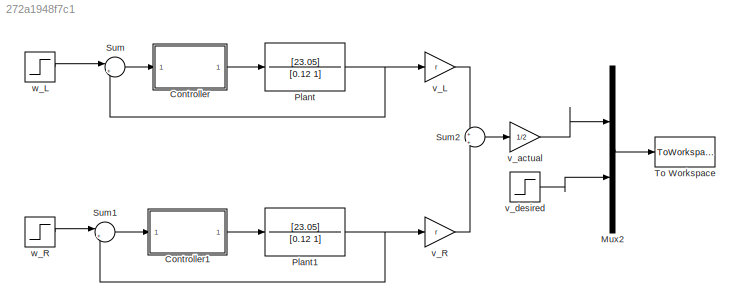
MODEL slx_272a1948f7c1
KIND model
CONFIG AbsTol = auto
CONFIG FixedStep = 0.002
CONFIG MaxStep = .1
CONFIG MinStep = auto
CONFIG PreLoadFcn = load_inputs
CONFIG RelTol = 1e-3
CONFIG SampleTimeConstraint = Unconstrained
CONFIG Solver = ode1
CONFIG SolverMode = Auto
CONFIG SolverName = ode1
CONFIG StartTime = 0.0
CONFIG StopTime = 20
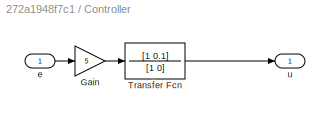
BLOCK [SubSystem] Controller
  Ports = [1, 1]
  RequestExecContextInheritance = off
  Variant = off
BLOCK [Gain] Controller/Gain
  Gain = 5
  OutDataTypeStr = Inherit: Inherit via internal rule
  ParamDataTypeStr = Inherit: Inherit via internal rule
  SaturateOnIntegerOverflow = off
BLOCK [TransferFcn] Controller/Transfer Fcn
  Denominator = [1 0]
  Numerator = [1 0.1]
BLOCK [Inport] Controller/e
  IconDisplay = Port number
BLOCK [Outport] Controller/u
  IconDisplay = Port number
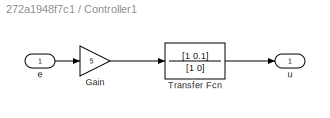
BLOCK [SubSystem] Controller1
  Ports = [1, 1]
  RequestExecContextInheritance = off
  Variant = off
BLOCK [Gain] Controller1/Gain
  Gain = 5
  OutDataTypeStr = Inherit: Inherit via internal rule
  ParamDataTypeStr = Inherit: Inherit via internal rule
  SaturateOnIntegerOverflow = off
BLOCK [TransferFcn] Controller1/Transfer Fcn
  Denominator = [1 0]
  Numerator = [1 0.1]
BLOCK [Inport] Controller1/e
  IconDisplay = Port number
BLOCK [Outport] Controller1/u
  IconDisplay = Port number
BLOCK [Mux] Mux2
  DisplayOption = bar
  Inputs = 2
  Ports = [2, 1]
BLOCK [TransferFcn] Plant
  Denominator = [0.12 1]
  Numerator = [23.05]
BLOCK [TransferFcn] Plant1
  Denominator = [0.12 1]
  Numerator = [23.05]
BLOCK [Sum] Sum
  IconShape = round
  InputSameDT = off
  Inputs = |+-
  OutDataTypeStr = Inherit: Inherit via internal rule
  Ports = [2, 1]
  SaturateOnIntegerOverflow = off
BLOCK [Sum] Sum1
  IconShape = round
  InputSameDT = off
  Inputs = |+-
  OutDataTypeStr = Inherit: Inherit via internal rule
  Ports = [2, 1]
  SaturateOnIntegerOverflow = off
BLOCK [Sum] Sum2
  IconShape = round
  InputSameDT = off
  Inputs = +|+
  OutDataTypeStr = Inherit: Inherit via internal rule
  Ports = [2, 1]
  SaturateOnIntegerOverflow = off
BLOCK [ToWorkspace] To Workspace
  FixptAsFi = on
  MaxDataPoints = inf
  Ports = [1]
  SampleTime = -1
  Save2DSignal = 3-D array (concatenate along third dimension)
  SaveFormat = Structure With Time
  VariableName = simout
BLOCK [Gain] v_L
  Gain = r
  OutDataTypeStr = Inherit: Inherit via internal rule
  ParamDataTypeStr = Inherit: Inherit via internal rule
  SaturateOnIntegerOverflow = off
BLOCK [Gain] v_R
  Gain = r
  OutDataTypeStr = Inherit: Inherit via internal rule
  ParamDataTypeStr = Inherit: Inherit via internal rule
  SaturateOnIntegerOverflow = off
BLOCK [Gain] v_actual
  Gain = 1/2
  OutDataTypeStr = Inherit: Inherit via internal rule
  ParamDataTypeStr = Inherit: Inherit via internal rule
  SaturateOnIntegerOverflow = off
BLOCK [Step] v_desired
  After = v_P
  SampleTime = 0
  Time = 0
BLOCK [Step] w_L
  After = w_L
  SampleTime = 0
  Time = 0
BLOCK [Step] w_R
  After = w_R
  SampleTime = 0
  Time = 0
LINE Controller/Gain:1 -> Controller/Transfer Fcn:1
LINE Controller/Transfer Fcn:1 -> Controller/u:1
LINE Controller/e:1 -> Controller/Gain:1
LINE Controller1/Gain:1 -> Controller1/Transfer Fcn:1
LINE Controller1/Transfer Fcn:1 -> Controller1/u:1
LINE Controller1/e:1 -> Controller1/Gain:1
LINE Controller1:1 -> Plant1:1
LINE Controller:1 -> Plant:1
LINE Mux2:1 -> To Workspace:1
NET Plant1:1 -> Sum1:2, v_R:1
NET Plant:1 -> Sum:2, v_L:1
LINE Sum1:1 -> Controller1:1
LINE Sum2:1 -> v_actual:1
LINE Sum:1 -> Controller:1
LINE v_L:1 -> Sum2:1
LINE v_R:1 -> Sum2:2
LINE v_actual:1 -> Mux2:1
LINE v_desired:1 -> Mux2:2
LINE w_L:1 -> Sum:1
LINE w_R:1 -> Sum1:1
note: NET lines group one-source signal fan-out (src -> all destinations, sorted); 1:1 wires keep LINE
